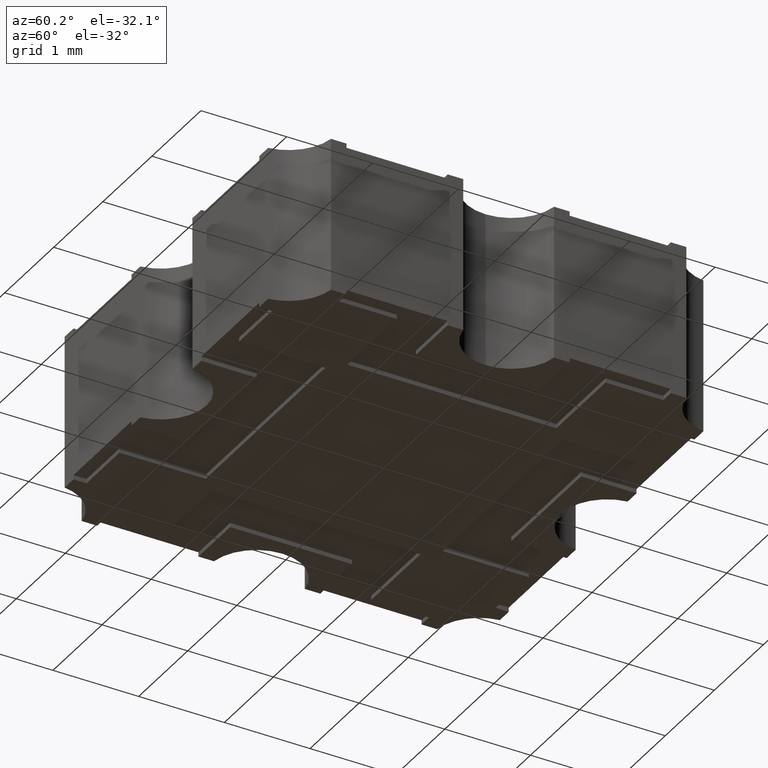
[diagram: clean part render]
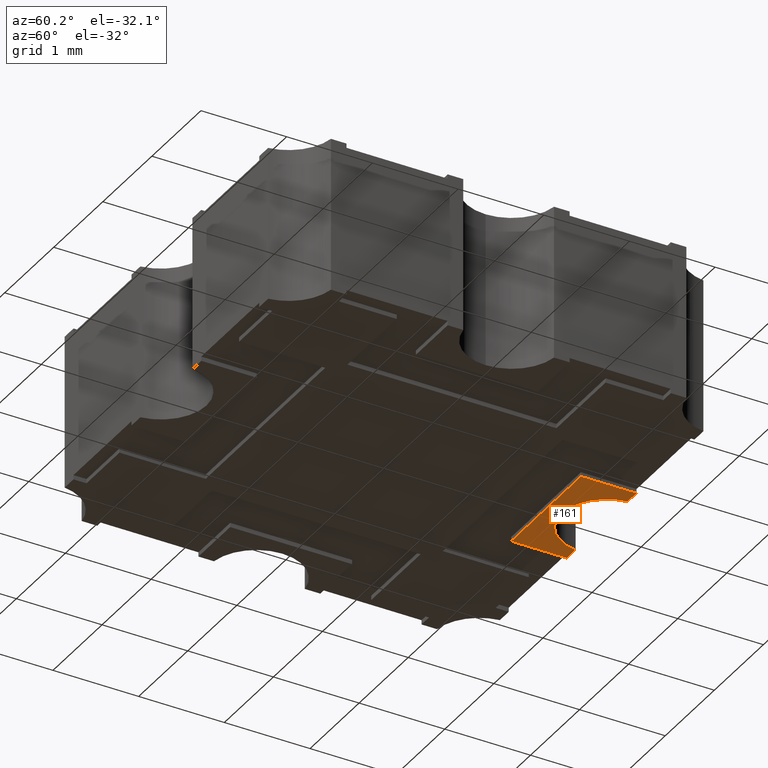
[diagram: same view with one face highlighted and labeled with its STEP entity id]
A machine part, auxiliary view. The second image highlights one B-rep face of the part: STEP entity #161.
In plain terms, the highlighted planar face has unit normal (0, 0, 1).
Its self-contained STEP definition (entity closure, byte-faithful):
#161 = ADVANCED_FACE ( 'NONE', ( #851 ), #3865, .F. ) ;
#169 = LINE ( 'NONE', #497, #2404 ) ;
#272 = VERTEX_POINT ( 'NONE', #3148 ) ;
#295 = LINE ( 'NONE', #3964, #892 ) ;
#450 = VECTOR ( 'NONE', #3463, 39.37007874015748143 ) ;
#491 = ORIENTED_EDGE ( 'NONE', *, *, #3926, .F. ) ;
#497 = CARTESIAN_POINT ( 'NONE',  ( -0.02799999999978469364, 0.07450000000001405498, 0.000000000000000000 ) ) ;
#648 = EDGE_CURVE ( 'NONE', #272, #1432, #2242, .T. ) ;
#666 = EDGE_LOOP ( 'NONE', ( #3562, #2115, #1805, #491, #885, #1621 ) ) ;
#670 = CARTESIAN_POINT ( 'NONE',  ( 0.02800000000020847271, 0.09999999999970569931, 0.000000000000000000 ) ) ;
#684 = CARTESIAN_POINT ( 'NONE',  ( -0.02799999999978469364, 0.07450000000001405498, 0.000000000000000000 ) ) ;
#708 = CARTESIAN_POINT ( 'NONE',  ( -0.02799999999978469364, 0.09999999999999747979, 0.000000000000000000 ) ) ;
#851 = FACE_OUTER_BOUND ( 'NONE', #666, .T. ) ;
#859 = EDGE_CURVE ( 'NONE', #3883, #1565, #169, .T. ) ;
#885 = ORIENTED_EDGE ( 'NONE', *, *, #648, .F. ) ;
#892 = VECTOR ( 'NONE', #2734, 39.37007874015748143 ) ;
#942 = LINE ( 'NONE', #3398, #450 ) ;
#971 = LINE ( 'NONE', #670, #1520 ) ;
#981 = VERTEX_POINT ( 'NONE', #3405 ) ;
#996 = AXIS2_PLACEMENT_3D ( 'NONE', #1927, #3172, #2575 ) ;
#1019 = EDGE_CURVE ( 'NONE', #2567, #981, #971, .T. ) ;
#1035 = DIRECTION ( 'NONE',  ( -1.000000000000000000, 0.000000000000000000, 0.000000000000000000 ) ) ;
#1100 = CARTESIAN_POINT ( 'NONE',  ( -0.1024999999999994527, 0.1024999999999968575, 0.000000000000000000 ) ) ;
#1134 = AXIS2_PLACEMENT_3D ( 'NONE', #1100, #3921, #2647 ) ;
#1432 = VERTEX_POINT ( 'NONE', #2125 ) ;
#1520 = VECTOR ( 'NONE', #3993, 39.37007874015748143 ) ;
#1565 = VERTEX_POINT ( 'NONE', #708 ) ;
#1621 = ORIENTED_EDGE ( 'NONE', *, *, #3734, .F. ) ;
#1805 = ORIENTED_EDGE ( 'NONE', *, *, #859, .T. ) ;
#1927 = CARTESIAN_POINT ( 'NONE',  ( -2.159440468741797933E-14, 0.1024999999999966493, 0.000000000000000000 ) ) ;
#2024 = DIRECTION ( 'NONE',  ( 0.000000000000000000, 1.000000000000000000, 0.000000000000000000 ) ) ;
#2115 = ORIENTED_EDGE ( 'NONE', *, *, #2398, .T. ) ;
#2125 = CARTESIAN_POINT ( 'NONE',  ( -0.02085065946201464238, 0.09999999999999747979, 0.000000000000000000 ) ) ;
#2242 = CIRCLE ( 'NONE', #996, 0.02099999999999990416 ) ;
#2398 = EDGE_CURVE ( 'NONE', #981, #3883, #3795, .T. ) ;
#2404 = VECTOR ( 'NONE', #2024, 39.37007874015748143 ) ;
#2567 = VERTEX_POINT ( 'NONE', #3367 ) ;
#2575 = DIRECTION ( 'NONE',  ( 1.000000000000000000, 0.000000000000000000, 0.000000000000000000 ) ) ;
#2647 = DIRECTION ( 'NONE',  ( 1.000000000000000000, 0.000000000000000000, -0.000000000000000000 ) ) ;
#2734 = DIRECTION ( 'NONE',  ( -1.000000000000000000, -0.000000000000000000, -0.000000000000000000 ) ) ;
#3148 = CARTESIAN_POINT ( 'NONE',  ( 0.02085065946197145123, 0.09999999999999747979, 0.000000000000000000 ) ) ;
#3172 = DIRECTION ( 'NONE',  ( -0.000000000000000000, -0.000000000000000000, -1.000000000000000000 ) ) ;
#3367 = CARTESIAN_POINT ( 'NONE',  ( 0.02800000000020847271, 0.09999999999970569931, 0.000000000000000000 ) ) ;
#3398 = CARTESIAN_POINT ( 'NONE',  ( -0.08164934053800637637, 0.09999999999999747979, 0.000000000000000000 ) ) ;
#3405 = CARTESIAN_POINT ( 'NONE',  ( 0.02800000000020847271, 0.07450000000001405498, 0.000000000000000000 ) ) ;
#3463 = DIRECTION ( 'NONE',  ( -1.000000000000000000, -0.000000000000000000, -0.000000000000000000 ) ) ;
#3505 = CARTESIAN_POINT ( 'NONE',  ( 0.02800000000020847271, 0.07450000000001405498, 0.000000000000000000 ) ) ;
#3562 = ORIENTED_EDGE ( 'NONE', *, *, #1019, .T. ) ;
#3734 = EDGE_CURVE ( 'NONE', #2567, #272, #295, .T. ) ;
#3795 = LINE ( 'NONE', #3505, #3893 ) ;
#3865 = PLANE ( 'NONE',  #1134 ) ;
#3883 = VERTEX_POINT ( 'NONE', #684 ) ;
#3893 = VECTOR ( 'NONE', #1035, 39.37007874015748143 ) ;
#3921 = DIRECTION ( 'NONE',  ( 0.000000000000000000, 0.000000000000000000, 1.000000000000000000 ) ) ;
#3926 = EDGE_CURVE ( 'NONE', #1432, #1565, #942, .T. ) ;
#3964 = CARTESIAN_POINT ( 'NONE',  ( 0.02085065946197145123, 0.09999999999999747979, 0.000000000000000000 ) ) ;
#3993 = DIRECTION ( 'NONE',  ( 0.000000000000000000, -1.000000000000000000, 0.000000000000000000 ) ) ;